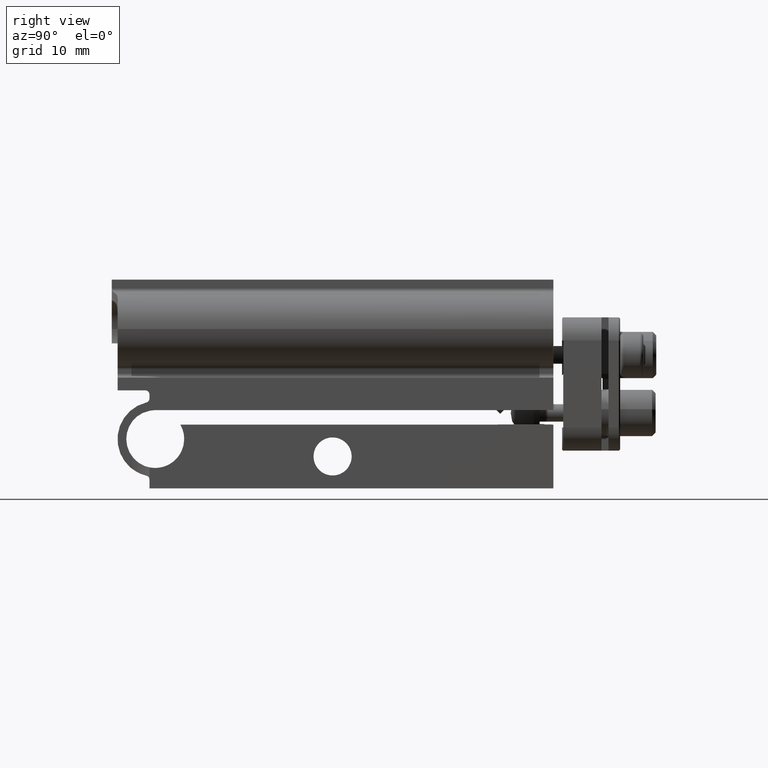
[diagram: clean part render]
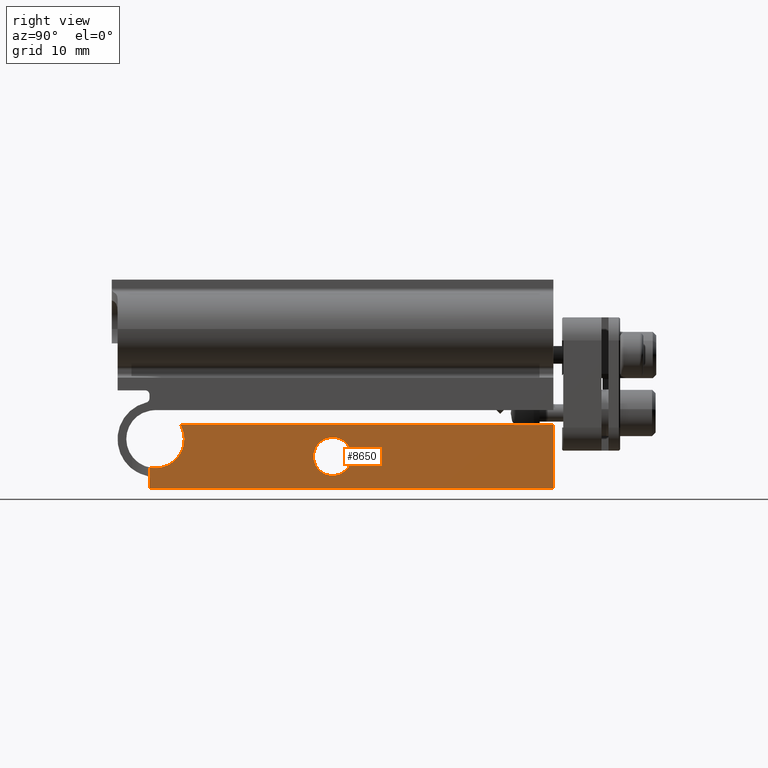
[diagram: same view with one face highlighted and labeled with its STEP entity id]
A machine part, right view. The second image highlights one B-rep face of the part: STEP entity #8650.
In plain terms, the highlighted planar face has unit normal (-1, 0, -0).
Its self-contained STEP definition (entity closure, byte-faithful):
#46 = DIRECTION ( 'NONE',  ( 4.718447854656915297E-15, 1.000000000000000000, -5.551115123125782702E-17 ) ) ;
#332 = AXIS2_PLACEMENT_3D ( 'NONE', #3558, #3444, #3614 ) ;
#412 = EDGE_CURVE ( 'NONE', #5802, #2709, #7141, .T. ) ;
#650 = ORIENTED_EDGE ( 'NONE', *, *, #412, .T. ) ;
#683 = CARTESIAN_POINT ( 'NONE',  ( 19.05000000000000426, 1.650000000000085398, -6.249999999999996447 ) ) ;
#698 = DIRECTION ( 'NONE',  ( 1.000000000000000000, 4.496403249731883989E-15, -2.403560570595272096E-31 ) ) ;
#745 = LINE ( 'NONE', #8090, #5241 ) ;
#1055 = CIRCLE ( 'NONE', #9997, 1.649999999999999245 ) ;
#1110 = ORIENTED_EDGE ( 'NONE', *, *, #4380, .T. ) ;
#1155 = VERTEX_POINT ( 'NONE', #3010 ) ;
#1565 = ORIENTED_EDGE ( 'NONE', *, *, #9009, .F. ) ;
#1744 = CARTESIAN_POINT ( 'NONE',  ( 19.05000000000014282, 19.05000000000014282, -9.000000000000001776 ) ) ;
#1855 = PLANE ( 'NONE',  #3352 ) ;
#1887 = ORIENTED_EDGE ( 'NONE', *, *, #10601, .F. ) ;
#2188 = VERTEX_POINT ( 'NONE', #10269 ) ;
#2345 = EDGE_LOOP ( 'NONE', ( #9984, #650, #5832, #1110, #3521, #3896, #1887 ) ) ;
#2370 = DIRECTION ( 'NONE',  ( 9.244463733059294530E-33, -5.551115123125756201E-17, -1.000000000000000000 ) ) ;
#2555 = CARTESIAN_POINT ( 'NONE',  ( 19.04999999999985150, -15.79999999999985150, -8.248213829942356412 ) ) ;
#2584 = DIRECTION ( 'NONE',  ( 4.718447854656915297E-15, 1.000000000000000000, -5.551115123125782702E-17 ) ) ;
#2660 = ORIENTED_EDGE ( 'NONE', *, *, #5256, .F. ) ;
#2709 = VERTEX_POINT ( 'NONE', #2555 ) ;
#2910 = DIRECTION ( 'NONE',  ( 1.000000000000000000, 4.496403249731883989E-15, -2.403560570595272096E-31 ) ) ;
#3010 = CARTESIAN_POINT ( 'NONE',  ( 19.04999999999985150, -13.13493649053882883, -3.499999999999998668 ) ) ;
#3107 = EDGE_CURVE ( 'NONE', #10192, #5515, #5177, .T. ) ;
#3305 = CARTESIAN_POINT ( 'NONE',  ( 19.04999999999984084, -12.79999999999992433, -4.749999999999998224 ) ) ;
#3339 = CIRCLE ( 'NONE', #3687, 2.500000000000000444 ) ;
#3352 = AXIS2_PLACEMENT_3D ( 'NONE', #5918, #9931, #9976 ) ;
#3441 = FACE_BOUND ( 'NONE', #6191, .T. ) ;
#3444 = DIRECTION ( 'NONE',  ( 1.000000000000000000, 4.496403249731883989E-15, -2.403560570595272096E-31 ) ) ;
#3521 = ORIENTED_EDGE ( 'NONE', *, *, #3107, .F. ) ;
#3528 = CARTESIAN_POINT ( 'NONE',  ( 19.04999999999985150, -15.29999999999992433, -3.499999999999998668 ) ) ;
#3558 = CARTESIAN_POINT ( 'NONE',  ( 19.04999999999985150, -15.29999999999992433, -4.749999999999998224 ) ) ;
#3574 = CARTESIAN_POINT ( 'NONE',  ( 19.05000000000000426, -1.649999999999913536, -6.249999999999996447 ) ) ;
#3614 = DIRECTION ( 'NONE',  ( 4.163336342344336238E-15, 1.000000000000000000, 0.0000000000000000000 ) ) ;
#3687 = AXIS2_PLACEMENT_3D ( 'NONE', #7082, #2910, #6116 ) ;
#3729 = DIRECTION ( 'NONE',  ( 4.205390244792261607E-15, 1.000000000000000000, 0.0000000000000000000 ) ) ;
#3896 = ORIENTED_EDGE ( 'NONE', *, *, #4723, .F. ) ;
#4016 = VERTEX_POINT ( 'NONE', #3574 ) ;
#4028 = DIRECTION ( 'NONE',  ( 4.205390244792261607E-15, 1.000000000000000000, 0.0000000000000000000 ) ) ;
#4100 = VECTOR ( 'NONE', #46, 1000.000000000000000 ) ;
#4348 = DIRECTION ( 'NONE',  ( 9.244463733059294530E-33, -5.551115123125756201E-17, -1.000000000000000000 ) ) ;
#4380 = EDGE_CURVE ( 'NONE', #2188, #5515, #6673, .T. ) ;
#4723 = EDGE_CURVE ( 'NONE', #1155, #10192, #9110, .T. ) ;
#5177 = LINE ( 'NONE', #5855, #10014 ) ;
#5241 = VECTOR ( 'NONE', #9102, 1000.000000000000000 ) ;
#5256 = EDGE_CURVE ( 'NONE', #4016, #6769, #6821, .T. ) ;
#5471 = VECTOR ( 'NONE', #2584, 1000.000000000000000 ) ;
#5515 = VERTEX_POINT ( 'NONE', #1744 ) ;
#5802 = VERTEX_POINT ( 'NONE', #6290 ) ;
#5832 = ORIENTED_EDGE ( 'NONE', *, *, #6818, .F. ) ;
#5855 = CARTESIAN_POINT ( 'NONE',  ( 19.05000000000014282, 19.05000000000014282, 8.999999999999998224 ) ) ;
#5918 = CARTESIAN_POINT ( 'NONE',  ( 19.05000000000014282, 19.05000000000014282, 8.999999999999998224 ) ) ;
#6116 = DIRECTION ( 'NONE',  ( 4.163336342344336238E-15, 1.000000000000000000, 0.0000000000000000000 ) ) ;
#6191 = EDGE_LOOP ( 'NONE', ( #1565, #2660 ) ) ;
#6290 = CARTESIAN_POINT ( 'NONE',  ( 19.04999999999985150, -15.79999999999985505, -7.199489742783176105 ) ) ;
#6491 = CARTESIAN_POINT ( 'NONE',  ( 19.04999999999985150, -15.79999999999985505, -9.000000000000001776 ) ) ;
#6673 = LINE ( 'NONE', #8536, #4100 ) ;
#6728 = FACE_OUTER_BOUND ( 'NONE', #2345, .T. ) ;
#6769 = VERTEX_POINT ( 'NONE', #683 ) ;
#6818 = EDGE_CURVE ( 'NONE', #2188, #2709, #745, .T. ) ;
#6821 = CIRCLE ( 'NONE', #9366, 1.649999999999999245 ) ;
#7082 = CARTESIAN_POINT ( 'NONE',  ( 19.04999999999985150, -15.29999999999992433, -4.749999999999998224 ) ) ;
#7141 = LINE ( 'NONE', #6491, #9387 ) ;
#7749 = DIRECTION ( 'NONE',  ( 1.000000000000000000, 4.496403249731883989E-15, -2.403560570595272096E-31 ) ) ;
#7751 = CIRCLE ( 'NONE', #332, 2.500000000000000444 ) ;
#8090 = CARTESIAN_POINT ( 'NONE',  ( 19.04999999999985150, -15.79999999999985150, -7.961308144666279674 ) ) ;
#8105 = CARTESIAN_POINT ( 'NONE',  ( 19.04999999999999716, 8.617689895018545483E-14, -6.249999999999996447 ) ) ;
#8241 = CARTESIAN_POINT ( 'NONE',  ( 19.05000000000014282, 19.05000000000014282, -3.500000000000000444 ) ) ;
#8536 = CARTESIAN_POINT ( 'NONE',  ( 19.05000000000014282, 19.05000000000014282, -9.000000000000001776 ) ) ;
#8650 = ADVANCED_FACE ( 'NONE', ( #3441, #6728 ), #1855, .F. ) ;
#9009 = EDGE_CURVE ( 'NONE', #6769, #4016, #1055, .T. ) ;
#9102 = DIRECTION ( 'NONE',  ( -9.244463733059294530E-33, 5.551115123125756201E-17, 1.000000000000000000 ) ) ;
#9110 = LINE ( 'NONE', #3528, #5471 ) ;
#9191 = EDGE_CURVE ( 'NONE', #5802, #9782, #3339, .T. ) ;
#9304 = CARTESIAN_POINT ( 'NONE',  ( 19.04999999999999716, 8.617689895018545483E-14, -6.249999999999996447 ) ) ;
#9366 = AXIS2_PLACEMENT_3D ( 'NONE', #9304, #7749, #3729 ) ;
#9387 = VECTOR ( 'NONE', #2370, 1000.000000000000000 ) ;
#9782 = VERTEX_POINT ( 'NONE', #3305 ) ;
#9931 = DIRECTION ( 'NONE',  ( -1.000000000000000000, 4.718447854656915297E-15, -2.711709361697226329E-31 ) ) ;
#9976 = DIRECTION ( 'NONE',  ( -4.718447854656915297E-15, -1.000000000000000000, 5.551115123125782702E-17 ) ) ;
#9984 = ORIENTED_EDGE ( 'NONE', *, *, #9191, .F. ) ;
#9997 = AXIS2_PLACEMENT_3D ( 'NONE', #8105, #698, #4028 ) ;
#10014 = VECTOR ( 'NONE', #4348, 1000.000000000000000 ) ;
#10192 = VERTEX_POINT ( 'NONE', #8241 ) ;
#10269 = CARTESIAN_POINT ( 'NONE',  ( 19.04999999999985150, -15.79999999999985150, -8.999999999999998224 ) ) ;
#10601 = EDGE_CURVE ( 'NONE', #9782, #1155, #7751, .T. ) ;